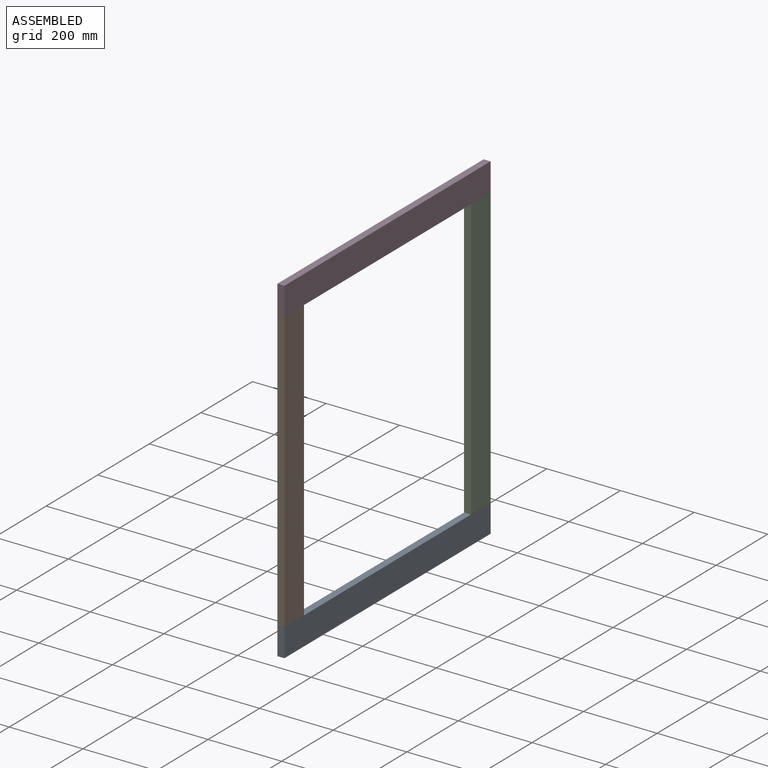
[diagram: assembled view]
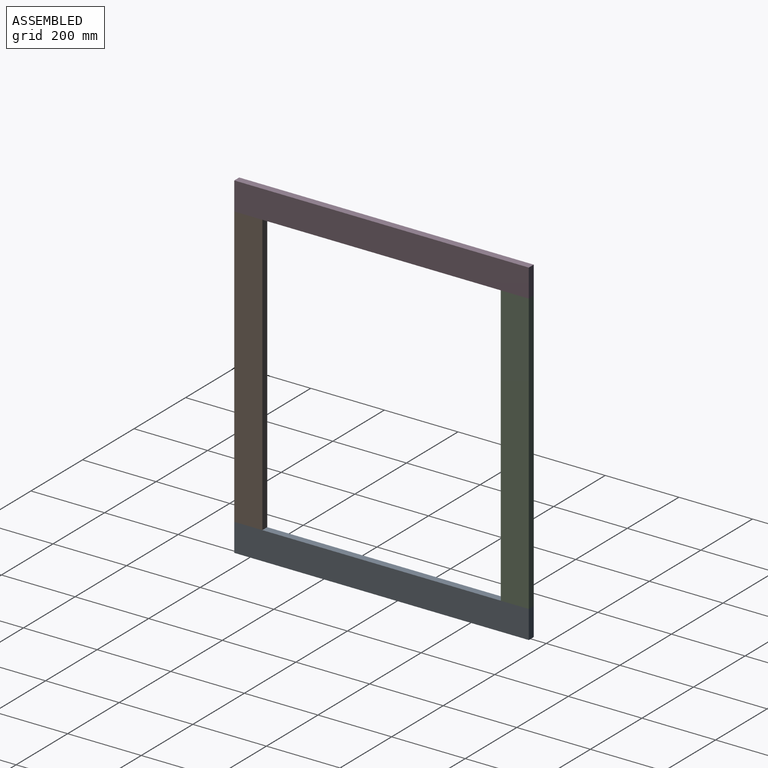
[diagram: assembled view, second angle]
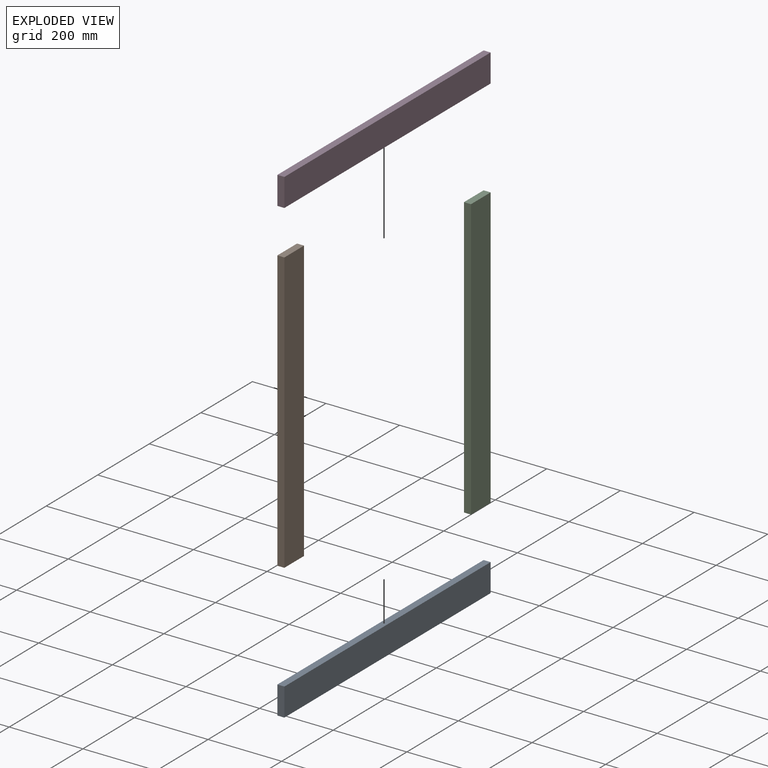
[diagram: exploded view]
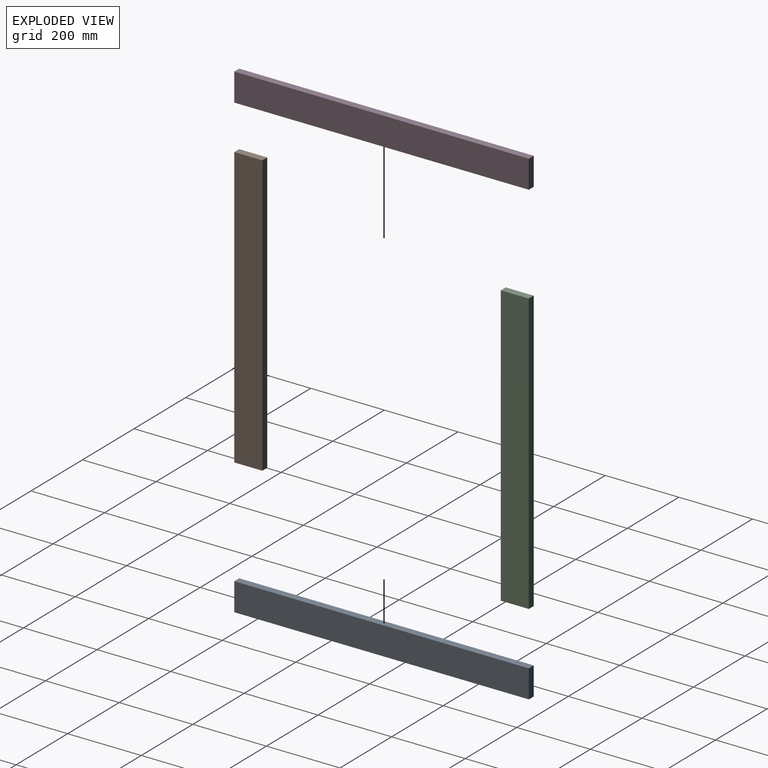
[diagram: exploded view, second angle]
ASSEMBLY  parts=4 mates=3
PART A: 6 faces, bbox 19.1x800.1x76.2 mm
  f0: plane 800.1x76.2mm, normal (1,0,0), area 60967.6mm2, adj f1,f3,f4,f5
  f1: plane 800.1x19.05mm, normal (0,0,1), area 15241.9mm2, adj f0,f2,f4,f5
  f2: plane 800.1x76.2mm, normal (-1,0,0), area 60967.6mm2, adj f1,f3,f4,f5
  f3: plane 800.1x19.05mm, normal (0,0,-1), area 15241.9mm2, adj f0,f2,f4,f5
  f4: plane 76.2x19.05mm, normal (0,1,0), area 1451.6mm2, adj f0,f1,f2,f3
  f5: plane 76.2x19.05mm, normal (0,-1,0), area 1451.6mm2, adj f0,f1,f2,f3
PART B: 6 faces, bbox 19.1x76.2x762 mm
  f0: plane 762x76.2mm, normal (-1,0,0), area 58064.4mm2, adj f1,f3,f4,f5
  f1: plane 762x19.05mm, normal (0,-1,0), area 14516.1mm2, adj f0,f2,f4,f5
  f2: plane 762x76.2mm, normal (1,0,0), area 58064.4mm2, adj f1,f3,f4,f5
  f3: plane 762x19.05mm, normal (0,1,0), area 14516.1mm2, adj f0,f2,f4,f5
  f4: plane 76.2x19.05mm, normal (0,0,1), area 1451.6mm2, adj f0,f1,f2,f3
  f5: plane 76.2x19.05mm, normal (0,0,-1), area 1451.6mm2, adj f0,f1,f2,f3
PART C: same geometry as B
PART D: same geometry as A
PLACE A t=(120.7,-240.38,126.79)mm
PLACE B t=(133.49,-138.78,202.99)mm
PLACE C t=(133.49,585.12,202.99)mm
PLACE D t=(120.7,-240.38,964.99)mm
MATE fastened B.f5 <-> A.f1  axis (0,0,1) through (95.68,-240.38,202.99)mm
MATE fastened C.f5 <-> A.f1  axis (0,0,1) through (95.68,559.72,202.99)mm
MATE fastened D.f3 <-> B.f4  axis (0,0,1) through (95.68,-240.38,964.99)mm
